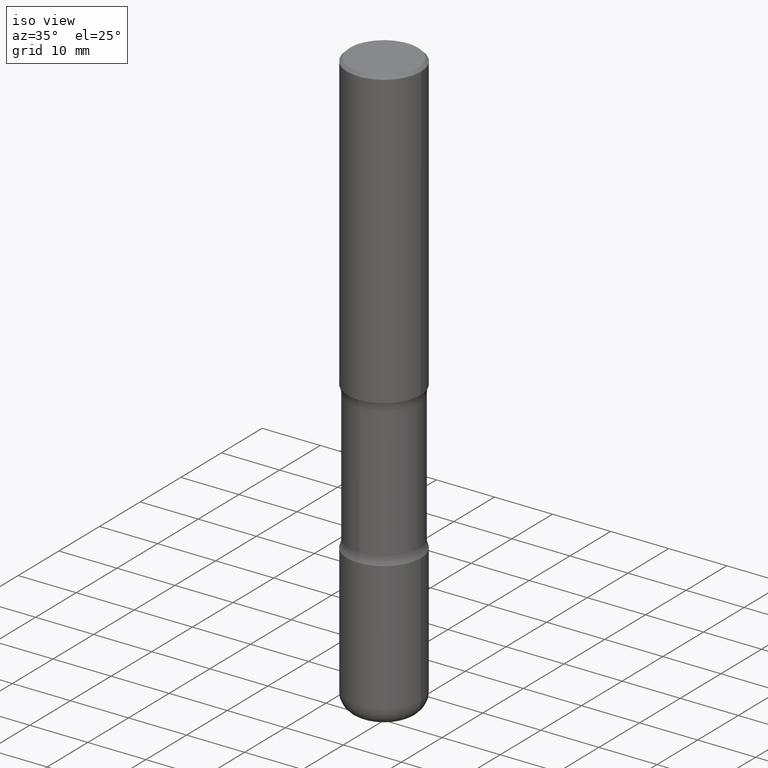
[diagram: clean part render]
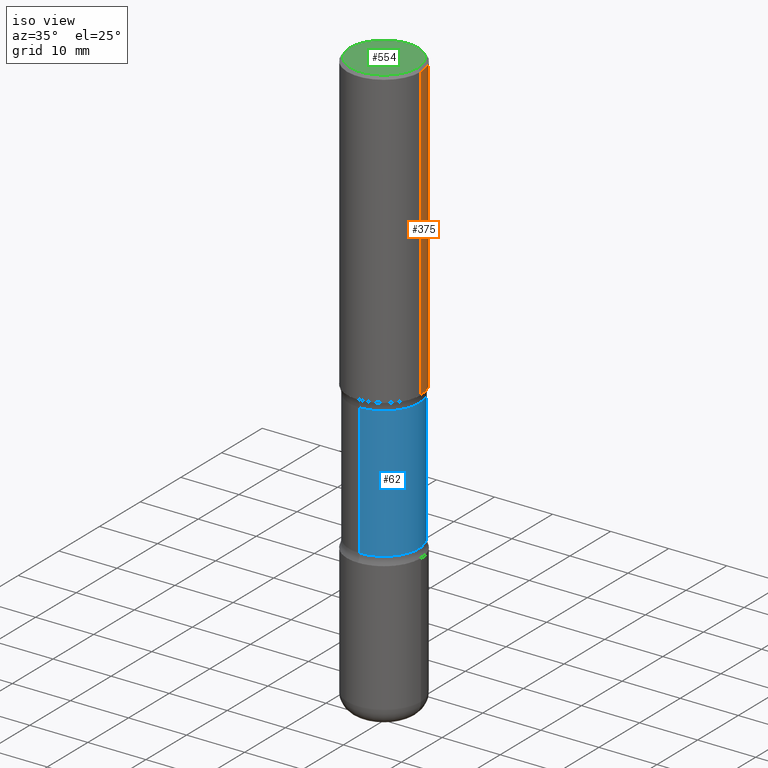
[diagram: same view with three faces highlighted in distinct colors, each labeled with its STEP entity id]
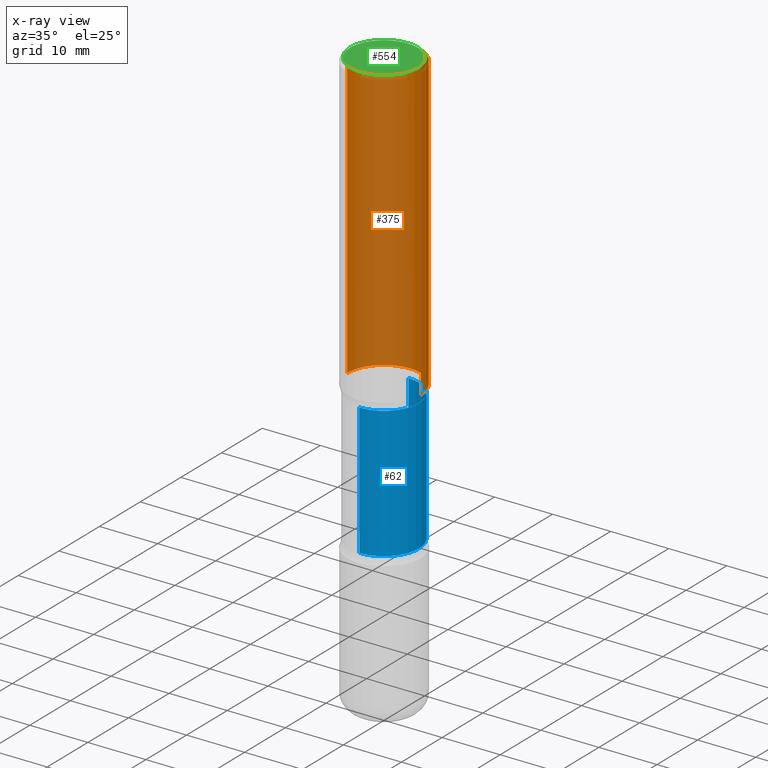
[diagram: x-ray of the same camera — body ghosted, the three highlighted faces saturated]
A machine part, iso view with three faces highlighted in distinct colors.
The next image is the same camera in x-ray (body ghosted, the three faces saturated) — at least one of them is partly hidden behind the body in this view.
Their STEP definitions:

[orange] entity #375 — the highlighted cylindrical surface (partial cylindrical patch) has radius 6.35 mm, axis along (-0, 0, 1).
#14 = CARTESIAN_POINT ( 'NONE',  ( 0.2500000000000001665, -8.728703347107858632E-15, -2.000000000000000000 ) ) ;
#19 = CARTESIAN_POINT ( 'NONE',  ( -0.2500000000000000555, 1.776356839400250859E-15, -1.229733772563726866E-29 ) ) ;
#22 = DIRECTION ( 'NONE',  ( -2.445468806185136877E-29, 3.491481338843145188E-15, 1.000000000000000000 ) ) ;
#24 = EDGE_CURVE ( 'NONE', #425, #124, #273, .T. ) ;
#32 = CARTESIAN_POINT ( 'NONE',  ( -0.2499999999999999167, 1.675911042644703182E-15, -0.02000000000000006981 ) ) ;
#43 = EDGE_LOOP ( 'NONE', ( #318, #147, #98, #54 ) ) ;
#54 = ORIENTED_EDGE ( 'NONE', *, *, #365, .F. ) ;
#89 = CYLINDRICAL_SURFACE ( 'NONE', #207, 0.2500000000000000555 ) ;
#98 = ORIENTED_EDGE ( 'NONE', *, *, #114, .F. ) ;
#114 = EDGE_CURVE ( 'NONE', #255, #124, #413, .T. ) ;
#124 = VERTEX_POINT ( 'NONE', #32 ) ;
#128 = FACE_OUTER_BOUND ( 'NONE', #43, .T. ) ;
#147 = ORIENTED_EDGE ( 'NONE', *, *, #24, .T. ) ;
#172 = CARTESIAN_POINT ( 'NONE',  ( 0.2500000000000000555, -1.745740669421567269E-15, 1.219044193948984228E-29 ) ) ;
#176 = DIRECTION ( 'NONE',  ( -2.445468806185136877E-29, 3.491481338843145188E-15, 1.000000000000000000 ) ) ;
#202 = DIRECTION ( 'NONE',  ( -2.445468806185136597E-29, 3.491481338843145583E-15, 1.000000000000000000 ) ) ;
#203 = EDGE_CURVE ( 'NONE', #364, #425, #414, .T. ) ;
#207 = AXIS2_PLACEMENT_3D ( 'NONE', #260, #224, #426 ) ;
#224 = DIRECTION ( 'NONE',  ( -2.445468806185136597E-29, 3.491481338843145583E-15, 1.000000000000000000 ) ) ;
#255 = VERTEX_POINT ( 'NONE', #513 ) ;
#260 = CARTESIAN_POINT ( 'NONE',  ( 0.000000000000000000, 0.000000000000000000, 0.000000000000000000 ) ) ;
#273 = LINE ( 'NONE', #19, #547 ) ;
#276 = AXIS2_PLACEMENT_3D ( 'NONE', #291, #202, #510 ) ;
#291 = CARTESIAN_POINT ( 'NONE',  ( 4.890937612370289799E-31, -6.982962677686315028E-17, -0.02000000000000006981 ) ) ;
#318 = ORIENTED_EDGE ( 'NONE', *, *, #203, .T. ) ;
#345 = DIRECTION ( 'NONE',  ( 1.000000000000000000, -6.982962677686265922E-15, 0.000000000000000000 ) ) ;
#357 = LINE ( 'NONE', #172, #496 ) ;
#364 = VERTEX_POINT ( 'NONE', #14 ) ;
#365 = EDGE_CURVE ( 'NONE', #364, #255, #357, .T. ) ;
#375 = ADVANCED_FACE ( 'NONE', ( #128 ), #89, .T. ) ;
#411 = DIRECTION ( 'NONE',  ( -2.445468806185136597E-29, 3.491481338843145583E-15, 1.000000000000000000 ) ) ;
#413 = CIRCLE ( 'NONE', #276, 0.2499999999999999167 ) ;
#414 = CIRCLE ( 'NONE', #548, 0.2500000000000001665 ) ;
#419 = CARTESIAN_POINT ( 'NONE',  ( 4.890937612370273194E-29, -6.982962677686291165E-15, -2.000000000000000000 ) ) ;
#425 = VERTEX_POINT ( 'NONE', #436 ) ;
#426 = DIRECTION ( 'NONE',  ( 1.000000000000000000, -6.982962677686267499E-15, 4.876176775795935793E-29 ) ) ;
#436 = CARTESIAN_POINT ( 'NONE',  ( -0.2500000000000001665, -1.750039312831323809E-15, -2.000000000000000000 ) ) ;
#496 = VECTOR ( 'NONE', #176, 39.37007874015748143 ) ;
#510 = DIRECTION ( 'NONE',  ( 1.000000000000000000, -6.982962677686267499E-15, 0.000000000000000000 ) ) ;
#513 = CARTESIAN_POINT ( 'NONE',  ( 0.2499999999999999167, -1.784954126219745400E-15, -0.02000000000000006981 ) ) ;
#547 = VECTOR ( 'NONE', #22, 39.37007874015748143 ) ;
#548 = AXIS2_PLACEMENT_3D ( 'NONE', #419, #411, #345 ) ;

[blue] entity #62 — the highlighted cylindrical surface (partial cylindrical patch) has radius 6.0325 mm, axis along (0, -0, -1).
#15 = EDGE_CURVE ( 'NONE', #316, #179, #472, .T. ) ;
#34 = AXIS2_PLACEMENT_3D ( 'NONE', #415, #36, #81 ) ;
#36 = DIRECTION ( 'NONE',  ( 2.530378452311521502E-29, -3.369885892833230986E-15, -1.000000000000000000 ) ) ;
#45 = EDGE_LOOP ( 'NONE', ( #270, #534, #356, #215 ) ) ;
#62 = ADVANCED_FACE ( 'NONE', ( #145 ), #227, .T. ) ;
#68 = DIRECTION ( 'NONE',  ( 6.982962677686265133E-15, 1.000000000000000000, -2.300503573612010239E-15 ) ) ;
#81 = DIRECTION ( 'NONE',  ( 6.982962677686265133E-15, 1.000000000000000000, -2.300503573612010239E-15 ) ) ;
#97 = VECTOR ( 'NONE', #307, 39.37007874015748143 ) ;
#100 = DIRECTION ( 'NONE',  ( 6.982962677686265133E-15, 1.000000000000000000, -3.450755360418014766E-15 ) ) ;
#131 = LINE ( 'NONE', #468, #97 ) ;
#145 = FACE_OUTER_BOUND ( 'NONE', #45, .T. ) ;
#179 = VERTEX_POINT ( 'NONE', #446 ) ;
#188 = DIRECTION ( 'NONE',  ( 2.530378452311521502E-29, -3.369885892833230986E-15, -1.000000000000000000 ) ) ;
#205 = AXIS2_PLACEMENT_3D ( 'NONE', #366, #188, #68 ) ;
#211 = EDGE_CURVE ( 'NONE', #367, #403, #267, .T. ) ;
#212 = CARTESIAN_POINT ( 'NONE',  ( -1.629368274470640415E-15, -0.2375000000000139222, -3.999999999999999556 ) ) ;
#215 = ORIENTED_EDGE ( 'NONE', *, *, #299, .F. ) ;
#227 = CYLINDRICAL_SURFACE ( 'NONE', #205, 0.2375000000000000999 ) ;
#230 = VECTOR ( 'NONE', #509, 39.37007874015748143 ) ;
#245 = EDGE_CURVE ( 'NONE', #179, #403, #552, .T. ) ;
#267 = CIRCLE ( 'NONE', #34, 0.2375000000000000722 ) ;
#270 = ORIENTED_EDGE ( 'NONE', *, *, #15, .T. ) ;
#299 = EDGE_CURVE ( 'NONE', #316, #367, #131, .T. ) ;
#307 = DIRECTION ( 'NONE',  ( 2.530378452311521502E-29, -3.369885892833230592E-15, -1.000000000000000000 ) ) ;
#308 = CARTESIAN_POINT ( 'NONE',  ( 1.658453635950560525E-15, 0.2374999999999897748, -2.945513763205741764 ) ) ;
#316 = VERTEX_POINT ( 'NONE', #354 ) ;
#317 = CARTESIAN_POINT ( 'NONE',  ( 4.943898765775623630E-29, -7.288170524422749615E-15, -2.054486236794258680 ) ) ;
#330 = AXIS2_PLACEMENT_3D ( 'NONE', #317, #368, #100 ) ;
#354 = CARTESIAN_POINT ( 'NONE',  ( 1.658453635950538436E-15, 0.2374999999999928557, -2.054486236794259568 ) ) ;
#356 = ORIENTED_EDGE ( 'NONE', *, *, #211, .F. ) ;
#366 = CARTESIAN_POINT ( 'NONE',  ( 9.866784870866931853E-29, -1.384432990936266734E-14, -4.000000000000000000 ) ) ;
#367 = VERTEX_POINT ( 'NONE', #308 ) ;
#368 = DIRECTION ( 'NONE',  ( 2.530378452311521502E-29, -3.369885892833230986E-15, -1.000000000000000000 ) ) ;
#403 = VERTEX_POINT ( 'NONE', #480 ) ;
#415 = CARTESIAN_POINT ( 'NONE',  ( 7.198535619023675570E-29, -1.029083161580289368E-14, -2.945513763205741320 ) ) ;
#446 = CARTESIAN_POINT ( 'NONE',  ( -1.672246386956763723E-15, -0.2375000000000074274, -2.054486236794258236 ) ) ;
#468 = CARTESIAN_POINT ( 'NONE',  ( 1.658453635950587543E-15, 0.2374999999999862776, -4.000000000000000888 ) ) ;
#472 = CIRCLE ( 'NONE', #330, 0.2375000000000001277 ) ;
#480 = CARTESIAN_POINT ( 'NONE',  ( -1.672246386956739071E-15, -0.2375000000000103417, -2.945513763205740876 ) ) ;
#509 = DIRECTION ( 'NONE',  ( 2.530378452311521502E-29, -3.369885892833230592E-15, -1.000000000000000000 ) ) ;
#534 = ORIENTED_EDGE ( 'NONE', *, *, #245, .T. ) ;
#552 = LINE ( 'NONE', #212, #230 ) ;

[green] entity #554 — the highlighted planar face has unit normal (0, -0, -1).
#5 = EDGE_LOOP ( 'NONE', ( #38, #325 ) ) ;
#9 = DIRECTION ( 'NONE',  ( -1.000000000000000000, 6.982962677686265922E-15, -4.876176775795935793E-29 ) ) ;
#38 = ORIENTED_EDGE ( 'NONE', *, *, #487, .T. ) ;
#60 = CARTESIAN_POINT ( 'NONE',  ( 1.606081415867840476E-15, 0.2299999999999998990, -8.030407079339231961E-16 ) ) ;
#99 = FACE_OUTER_BOUND ( 'NONE', #5, .T. ) ;
#130 = VERTEX_POINT ( 'NONE', #248 ) ;
#133 = PLANE ( 'NONE',  #495 ) ;
#136 = CARTESIAN_POINT ( 'NONE',  ( 0.2299999999999998990, -1.681434332853598617E-15, 1.149527484987432660E-29 ) ) ;
#150 = AXIS2_PLACEMENT_3D ( 'NONE', #386, #343, #515 ) ;
#248 = CARTESIAN_POINT ( 'NONE',  ( -0.2299999999999998990, 1.640996229256271928E-15, -1.135408596578605420E-29 ) ) ;
#295 = AXIS2_PLACEMENT_3D ( 'NONE', #523, #434, #396 ) ;
#315 = DIRECTION ( 'NONE',  ( 2.438088387897960049E-29, -3.491481338843145188E-15, -1.000000000000000000 ) ) ;
#325 = ORIENTED_EDGE ( 'NONE', *, *, #514, .T. ) ;
#343 = DIRECTION ( 'NONE',  ( -2.445468806185136597E-29, 3.491481338843145583E-15, 1.000000000000000000 ) ) ;
#386 = CARTESIAN_POINT ( 'NONE',  ( 0.000000000000000000, 0.000000000000000000, 0.000000000000000000 ) ) ;
#396 = DIRECTION ( 'NONE',  ( 1.000000000000000000, -6.982962677686267499E-15, 4.876176775795936353E-29 ) ) ;
#400 = CIRCLE ( 'NONE', #150, 0.2299999999999998990 ) ;
#434 = DIRECTION ( 'NONE',  ( -2.445468806185136597E-29, 3.491481338843145583E-15, 1.000000000000000000 ) ) ;
#487 = EDGE_CURVE ( 'NONE', #130, #516, #400, .T. ) ;
#495 = AXIS2_PLACEMENT_3D ( 'NONE', #60, #315, #9 ) ;
#514 = EDGE_CURVE ( 'NONE', #516, #130, #540, .T. ) ;
#515 = DIRECTION ( 'NONE',  ( 1.000000000000000000, -6.982962677686267499E-15, 4.876176775795936353E-29 ) ) ;
#516 = VERTEX_POINT ( 'NONE', #136 ) ;
#523 = CARTESIAN_POINT ( 'NONE',  ( 0.000000000000000000, 0.000000000000000000, 0.000000000000000000 ) ) ;
#540 = CIRCLE ( 'NONE', #295, 0.2299999999999998990 ) ;
#554 = ADVANCED_FACE ( 'NONE', ( #99 ), #133, .F. ) ;